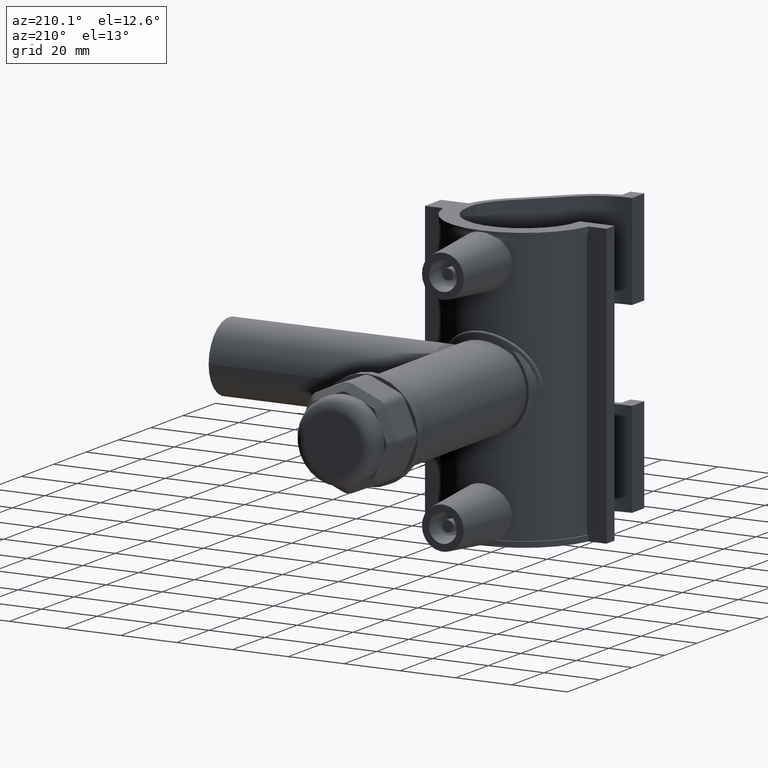
[diagram: clean part render]
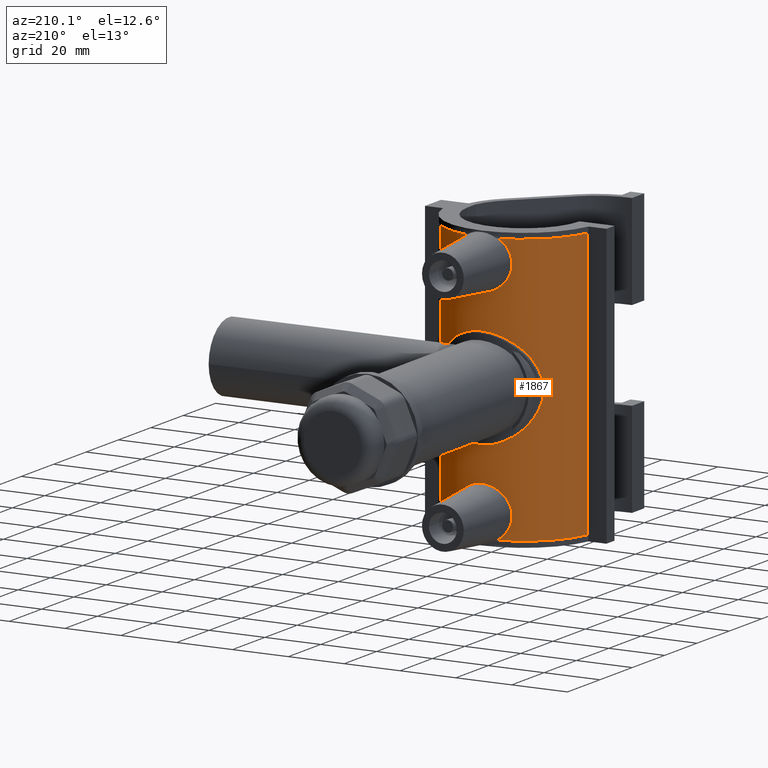
[diagram: same view with one face highlighted and labeled with its STEP entity id]
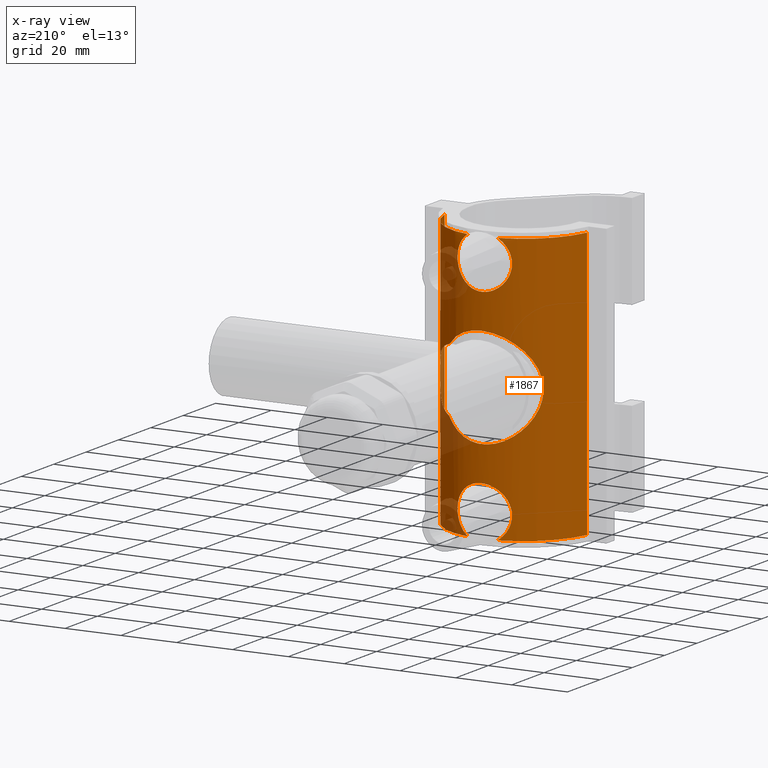
[diagram: x-ray of the same camera — body ghosted, the highlighted face saturated]
A machine part, auxiliary view. The second image highlights one B-rep face of the part: STEP entity #1867.
The next image is the same camera in x-ray: the body ghosted, the highlighted face saturated — about 8% of this face is hidden behind the body in this view.
In plain terms, the highlighted cylindrical surface (partial cylindrical patch) has radius 26 mm, axis along (0, 0, 1).
Its self-contained STEP definition (entity closure, byte-faithful):
#55=FACE_BOUND('',#369,.T.);
#69=B_SPLINE_CURVE_WITH_KNOTS('',3,(#2870,#2871,#2872,#2873,#2874,#2875,
#2876,#2877),.UNSPECIFIED.,.F.,.F.,(4,2,2,4),(2.94996046614777,3.31966211596086,
3.68936376577394,3.87630209367673),.UNSPECIFIED.);
#70=B_SPLINE_CURVE_WITH_KNOTS('',3,(#2878,#2879,#2880,#2881,#2882,#2883,
#2884,#2885,#2886,#2887,#2888,#2889,#2890,#2891,#2892,#2893,#2894,#2895,
#2896,#2897,#2898,#2899,#2900,#2901,#2902),.UNSPECIFIED.,.F.,.F.,(4,2,2,
3,2,2,2,2,2,2,2,4),(4.97357930476659,5.16051763266937,5.53021928248246,
5.89992093229554,6.26962258210863,6.63932423192171,7.00711269864557,7.37490116536943,
7.74268963209329,8.11047809881715,8.48017974863023,8.84988139844332),
 .UNSPECIFIED.);
#72=B_SPLINE_CURVE_WITH_KNOTS('',3,(#2946,#2947,#2948,#2949,#2950,#2951,
#2952,#2953,#2954,#2955,#2956,#2957,#2958,#2959,#2960,#2961,#2962,#2963,
#2964,#2965,#2966,#2967,#2968,#2969),.UNSPECIFIED.,.F.,.F.,(4,2,2,2,2,2,
2,2,2,2,2,4),(0.,0.369701649813085,0.739403299626169,1.10719176635003,1.47498023307389,
1.84276869979774,2.2105571665216,2.58025881633469,2.94996046614777,3.31966211596086,
3.68936376577394,3.87630209367673),.UNSPECIFIED.);
#73=B_SPLINE_CURVE_WITH_KNOTS('',3,(#2970,#2971,#2972,#2973,#2974,#2975,
#2976,#2977),.UNSPECIFIED.,.F.,.F.,(4,2,2,4),(4.97357930476659,5.16051763266937,
5.53021928248246,5.89992093229554),.UNSPECIFIED.);
#90=B_SPLINE_CURVE_WITH_KNOTS('',3,(#3247,#3248,#3249,#3250,#3251,#3252,
#3253,#3254,#3255,#3256,#3257,#3258,#3259,#3260,#3261,#3262,#3263,#3264,
#3265,#3266,#3267,#3268,#3269,#3270,#3271,#3272,#3273,#3274,#3275,#3276,
#3277,#3278,#3279,#3280,#3281,#3282,#3283,#3284,#3285,#3286,#3287,#3288,
#3289,#3290,#3291,#3292,#3293,#3294,#3295,#3296),.UNSPECIFIED.,.F.,.F.,
(4,2,2,2,2,2,2,2,2,2,2,2,2,2,2,2,2,2,2,2,2,2,2,2,4),(1.24480447009788,1.4282482506989,
1.78051013827437,2.13277202584984,2.48503391342532,2.83729580100079,3.18955768857626,
3.54181957615173,3.8940814637272,4.24634335130267,4.96046747665213,5.31752953932685,
5.67459160200158,6.0316536646763,6.38871572735103,7.10283985270048,7.45510174027595,
7.80736362785142,8.15962551542689,8.51188740300236,8.86414929057783,9.2164111781533,
9.56867306572878,9.92093495330425,10.1043787339053),.UNSPECIFIED.);
#92=B_SPLINE_CURVE_WITH_KNOTS('',3,(#3304,#3305,#3306,#3307,#3308,#3309,
#3310,#3311,#3312,#3313,#3314,#3315,#3316,#3317,#3318,#3319,#3320,#3321,
#3322,#3323,#3324,#3325),.UNSPECIFIED.,.F.,.F.,(4,2,2,2,2,2,2,2,2,2,4),
(1.51817487834164,1.75387686182391,2.04507912757851,2.33628139333311,2.74559691452897,
3.15491243572484,3.56422795692071,3.97354347811657,4.26474574387117,4.55594800962577,
4.79164999310803),.UNSPECIFIED.);
#113=CIRCLE('',#1992,26.);
#114=CIRCLE('',#1994,26.);
#117=CIRCLE('',#2001,26.);
#118=CIRCLE('',#2003,26.);
#189=CYLINDRICAL_SURFACE('',#2006,26.);
#242=FACE_OUTER_BOUND('',#368,.T.);
#368=EDGE_LOOP('',(#1356,#1357,#1358,#1359,#1360,#1361,#1362,#1363,#1364,
#1365));
#369=EDGE_LOOP('',(#1366,#1367));
#486=LINE('',#2911,#635);
#492=LINE('',#2983,#641);
#635=VECTOR('',#2249,96.);
#641=VECTOR('',#2273,96.);
#790=VERTEX_POINT('',#2849);
#793=VERTEX_POINT('',#2865);
#794=VERTEX_POINT('',#2869);
#797=VERTEX_POINT('',#2908);
#798=VERTEX_POINT('',#2910);
#800=VERTEX_POINT('',#2921);
#801=VERTEX_POINT('',#2925);
#804=VERTEX_POINT('',#2941);
#805=VERTEX_POINT('',#2945);
#807=VERTEX_POINT('',#2981);
#826=VERTEX_POINT('',#3239);
#827=VERTEX_POINT('',#3246);
#983=EDGE_CURVE('',#794,#793,#69,.T.);
#984=EDGE_CURVE('',#790,#794,#70,.T.);
#988=EDGE_CURVE('',#797,#798,#486,.T.);
#993=EDGE_CURVE('',#797,#790,#113,.T.);
#995=EDGE_CURVE('',#793,#800,#114,.T.);
#999=EDGE_CURVE('',#805,#804,#72,.T.);
#1000=EDGE_CURVE('',#801,#805,#73,.T.);
#1003=EDGE_CURVE('',#800,#807,#492,.T.);
#1006=EDGE_CURVE('',#807,#801,#117,.T.);
#1007=EDGE_CURVE('',#804,#798,#118,.T.);
#1028=EDGE_CURVE('',#827,#826,#90,.T.);
#1030=EDGE_CURVE('',#826,#827,#92,.T.);
#1356=ORIENTED_EDGE('',*,*,#1007,.T.);
#1357=ORIENTED_EDGE('',*,*,#988,.F.);
#1358=ORIENTED_EDGE('',*,*,#993,.T.);
#1359=ORIENTED_EDGE('',*,*,#984,.T.);
#1360=ORIENTED_EDGE('',*,*,#983,.T.);
#1361=ORIENTED_EDGE('',*,*,#995,.T.);
#1362=ORIENTED_EDGE('',*,*,#1003,.T.);
#1363=ORIENTED_EDGE('',*,*,#1006,.T.);
#1364=ORIENTED_EDGE('',*,*,#1000,.T.);
#1365=ORIENTED_EDGE('',*,*,#999,.T.);
#1366=ORIENTED_EDGE('',*,*,#1030,.T.);
#1367=ORIENTED_EDGE('',*,*,#1028,.T.);
#1867=ADVANCED_FACE('',(#242,#55),#189,.T.);
#1992=AXIS2_PLACEMENT_3D('',#2919,#2260,#2261);
#1994=AXIS2_PLACEMENT_3D('',#2923,#2265,#2266);
#2001=AXIS2_PLACEMENT_3D('',#2988,#2282,#2283);
#2003=AXIS2_PLACEMENT_3D('',#2990,#2286,#2287);
#2006=AXIS2_PLACEMENT_3D('',#3303,#2296,#2297);
#2249=DIRECTION('',(0.,0.,-1.));
#2260=DIRECTION('center_axis',(0.,0.,-1.));
#2261=DIRECTION('ref_axis',(1.,0.,0.));
#2265=DIRECTION('center_axis',(0.,0.,-1.));
#2266=DIRECTION('ref_axis',(1.,0.,0.));
#2273=DIRECTION('',(0.,0.,-1.));
#2282=DIRECTION('center_axis',(0.,0.,1.));
#2283=DIRECTION('ref_axis',(1.,0.,0.));
#2286=DIRECTION('center_axis',(0.,0.,1.));
#2287=DIRECTION('ref_axis',(1.,0.,0.));
#2296=DIRECTION('center_axis',(0.,0.,1.));
#2297=DIRECTION('ref_axis',(1.,0.,0.));
#2849=CARTESIAN_POINT('',(-5.3951674336109,25.4340749460896,48.));
#2865=CARTESIAN_POINT('',(5.3951674336109,25.4340749460896,48.));
#2869=CARTESIAN_POINT('',(9.76630249195255,24.096043983104,40.));
#2870=CARTESIAN_POINT('Ctrl Pts',(9.76630249195255,24.096043983104,40.));
#2871=CARTESIAN_POINT('Ctrl Pts',(9.76630249195255,24.096043983104,41.2323388327103));
#2872=CARTESIAN_POINT('Ctrl Pts',(9.50996216014971,24.2044189053942,42.5340450094426));
#2873=CARTESIAN_POINT('Ctrl Pts',(8.49387395753575,24.5794092044208,44.9067073127729));
#2874=CARTESIAN_POINT('Ctrl Pts',(7.73484343137409,24.8390807172828,45.9790627512517));
#2875=CARTESIAN_POINT('Ctrl Pts',(6.42972331783999,25.1965310724773,47.2485693515817));
#2876=CARTESIAN_POINT('Ctrl Pts',(5.93451184178679,25.3196672708485,47.6483411838531));
#2877=CARTESIAN_POINT('Ctrl Pts',(5.3951674336109,25.4340749460896,48.));
#2878=CARTESIAN_POINT('Ctrl Pts',(-5.3951674336109,25.4340749460896,48.));
#2879=CARTESIAN_POINT('Ctrl Pts',(-5.93451184178679,25.3196672708485,47.6483411838531));
#2880=CARTESIAN_POINT('Ctrl Pts',(-6.42972331783999,25.1965310724773,47.2485693515817));
#2881=CARTESIAN_POINT('Ctrl Pts',(-7.73484343137409,24.8390807172828,45.9790627512517));
#2882=CARTESIAN_POINT('Ctrl Pts',(-8.49387395753575,24.5794092044208,44.9067073127729));
#2883=CARTESIAN_POINT('Ctrl Pts',(-9.50996216014971,24.2044189053942,42.5340450094426));
#2884=CARTESIAN_POINT('Ctrl Pts',(-9.76630249195255,24.096043983104,41.2323388327103));
#2885=CARTESIAN_POINT('Ctrl Pts',(-9.76630249195255,24.096043983104,40.));
#2886=CARTESIAN_POINT('Ctrl Pts',(-9.76630249195255,24.096043983104,38.7676611672897));
#2887=CARTESIAN_POINT('Ctrl Pts',(-9.50996216014971,24.2044189053943,37.4659549905574));
#2888=CARTESIAN_POINT('Ctrl Pts',(-8.49387395753574,24.5794092044208,35.0932926872271));
#2889=CARTESIAN_POINT('Ctrl Pts',(-7.73484343137409,24.8390807172828,34.0209372487483));
#2890=CARTESIAN_POINT('Ctrl Pts',(-6.00569492756996,25.3126652865951,32.3389729484772));
#2891=CARTESIAN_POINT('Ctrl Pts',(-4.91758131382388,25.5592379122145,31.6109466468528));
#2892=CARTESIAN_POINT('Ctrl Pts',(-2.528128502029,25.9049380292898,30.6412987795354));
#2893=CARTESIAN_POINT('Ctrl Pts',(-1.22596155574619,26.,30.4002720753778));
#2894=CARTESIAN_POINT('Ctrl Pts',(1.22596155574619,26.,30.4002720753778));
#2895=CARTESIAN_POINT('Ctrl Pts',(2.528128502029,25.9049380292898,30.6412987795354));
#2896=CARTESIAN_POINT('Ctrl Pts',(4.91758131382388,25.5592379122145,31.6109466468528));
#2897=CARTESIAN_POINT('Ctrl Pts',(6.00569492756995,25.3126652865951,32.3389729484772));
#2898=CARTESIAN_POINT('Ctrl Pts',(7.73484343137408,24.8390807172828,34.0209372487483));
#2899=CARTESIAN_POINT('Ctrl Pts',(8.49387395753574,24.5794092044208,35.0932926872271));
#2900=CARTESIAN_POINT('Ctrl Pts',(9.50996216014971,24.2044189053942,37.4659549905574));
#2901=CARTESIAN_POINT('Ctrl Pts',(9.76630249195255,24.096043983104,38.7676611672897));
#2902=CARTESIAN_POINT('Ctrl Pts',(9.76630249195255,24.096043983104,40.));
#2908=CARTESIAN_POINT('',(-25.5147016443462,5.,48.));
#2910=CARTESIAN_POINT('',(-25.5147016443462,5.,-48.));
#2911=CARTESIAN_POINT('',(-25.5147016443462,5.,0.));
#2919=CARTESIAN_POINT('Origin',(0.,0.,48.));
#2921=CARTESIAN_POINT('',(25.5147016443462,4.99999999999999,48.));
#2923=CARTESIAN_POINT('Origin',(0.,0.,48.));
#2925=CARTESIAN_POINT('',(5.3951674336109,25.4340749460896,-48.));
#2941=CARTESIAN_POINT('',(-5.3951674336109,25.4340749460896,-48.));
#2945=CARTESIAN_POINT('',(9.76630249195255,24.096043983104,-40.));
#2946=CARTESIAN_POINT('Ctrl Pts',(9.76630249195255,24.096043983104,-40.));
#2947=CARTESIAN_POINT('Ctrl Pts',(9.76630249195255,24.096043983104,-38.7676611672897));
#2948=CARTESIAN_POINT('Ctrl Pts',(9.5099621601497,24.2044189053943,-37.4659549905574));
#2949=CARTESIAN_POINT('Ctrl Pts',(8.49387395753574,24.5794092044208,-35.0932926872271));
#2950=CARTESIAN_POINT('Ctrl Pts',(7.73484343137408,24.8390807172828,-34.0209372487483));
#2951=CARTESIAN_POINT('Ctrl Pts',(6.00569492756995,25.3126652865951,-32.3389729484772));
#2952=CARTESIAN_POINT('Ctrl Pts',(4.91758131382388,25.5592379122145,-31.6109466468528));
#2953=CARTESIAN_POINT('Ctrl Pts',(2.528128502029,25.9049380292898,-30.6412987795354));
#2954=CARTESIAN_POINT('Ctrl Pts',(1.22596155574619,26.,-30.4002720753778));
#2955=CARTESIAN_POINT('Ctrl Pts',(-1.22596155574619,26.,-30.4002720753778));
#2956=CARTESIAN_POINT('Ctrl Pts',(-2.528128502029,25.9049380292898,-30.6412987795354));
#2957=CARTESIAN_POINT('Ctrl Pts',(-4.91758131382388,25.5592379122145,-31.6109466468528));
#2958=CARTESIAN_POINT('Ctrl Pts',(-6.00569492756996,25.3126652865951,-32.3389729484772));
#2959=CARTESIAN_POINT('Ctrl Pts',(-7.73484343137409,24.8390807172828,-34.0209372487483));
#2960=CARTESIAN_POINT('Ctrl Pts',(-8.49387395753574,24.5794092044208,-35.0932926872271));
#2961=CARTESIAN_POINT('Ctrl Pts',(-9.50996216014971,24.2044189053943,-37.4659549905574));
#2962=CARTESIAN_POINT('Ctrl Pts',(-9.76630249195255,24.096043983104,-38.7676611672897));
#2963=CARTESIAN_POINT('Ctrl Pts',(-9.76630249195255,24.096043983104,-41.2323388327103));
#2964=CARTESIAN_POINT('Ctrl Pts',(-9.50996216014972,24.2044189053942,-42.5340450094426));
#2965=CARTESIAN_POINT('Ctrl Pts',(-8.49387395753575,24.5794092044208,-44.9067073127729));
#2966=CARTESIAN_POINT('Ctrl Pts',(-7.73484343137408,24.8390807172828,-45.9790627512517));
#2967=CARTESIAN_POINT('Ctrl Pts',(-6.42972331783999,25.1965310724773,-47.2485693515817));
#2968=CARTESIAN_POINT('Ctrl Pts',(-5.93451184178679,25.3196672708485,-47.6483411838531));
#2969=CARTESIAN_POINT('Ctrl Pts',(-5.39516743361091,25.4340749460896,-48.));
#2970=CARTESIAN_POINT('Ctrl Pts',(5.3951674336109,25.4340749460896,-48.));
#2971=CARTESIAN_POINT('Ctrl Pts',(5.93451184178679,25.3196672708485,-47.6483411838531));
#2972=CARTESIAN_POINT('Ctrl Pts',(6.42972331783999,25.1965310724773,-47.2485693515817));
#2973=CARTESIAN_POINT('Ctrl Pts',(7.73484343137409,24.8390807172828,-45.9790627512517));
#2974=CARTESIAN_POINT('Ctrl Pts',(8.49387395753574,24.5794092044208,-44.9067073127729));
#2975=CARTESIAN_POINT('Ctrl Pts',(9.5099621601497,24.2044189053942,-42.5340450094426));
#2976=CARTESIAN_POINT('Ctrl Pts',(9.76630249195255,24.096043983104,-41.2323388327103));
#2977=CARTESIAN_POINT('Ctrl Pts',(9.76630249195255,24.096043983104,-40.));
#2981=CARTESIAN_POINT('',(25.5147016443462,4.99999999999999,-48.));
#2983=CARTESIAN_POINT('',(25.5147016443462,4.99999999999999,0.));
#2988=CARTESIAN_POINT('Origin',(0.,0.,-48.));
#2990=CARTESIAN_POINT('Origin',(0.,0.,-48.));
#3239=CARTESIAN_POINT('',(13.8914132865373,21.9779124780999,-11.4467740831916));
#3246=CARTESIAN_POINT('',(13.8914132865373,21.9779124780999,11.4467740831916));
#3247=CARTESIAN_POINT('Ctrl Pts',(13.8914132865373,21.9779124782727,11.4467740827979));
#3248=CARTESIAN_POINT('Ctrl Pts',(13.5194038834503,22.2130456543589,11.8982319631912));
#3249=CARTESIAN_POINT('Ctrl Pts',(13.129795975017,22.4459542436485,12.3260481476988));
#3250=CARTESIAN_POINT('Ctrl Pts',(11.9562149861488,23.1048079803976,13.4996291365669));
#3251=CARTESIAN_POINT('Ctrl Pts',(11.0808501527128,23.5436566291891,14.2325620782425));
#3252=CARTESIAN_POINT('Ctrl Pts',(9.15831442918429,24.3559907288748,15.5395090124102));
#3253=CARTESIAN_POINT('Ctrl Pts',(8.11101055590943,24.729045980526,16.11359473591));
#3254=CARTESIAN_POINT('Ctrl Pts',(5.90306288556097,25.3469537157066,17.046709025924));
#3255=CARTESIAN_POINT('Ctrl Pts',(4.74002611958919,25.5921162321482,17.4065092815395));
#3256=CARTESIAN_POINT('Ctrl Pts',(2.37563064979923,25.9187314481245,17.8832545139332));
#3257=CARTESIAN_POINT('Ctrl Pts',(1.17420629191824,26.,18.));
#3258=CARTESIAN_POINT('Ctrl Pts',(-1.17420629191824,26.,18.));
#3259=CARTESIAN_POINT('Ctrl Pts',(-2.37563064979923,25.9187314481245,17.8832545139332));
#3260=CARTESIAN_POINT('Ctrl Pts',(-4.74002611958918,25.5921162321482,17.4065092815395));
#3261=CARTESIAN_POINT('Ctrl Pts',(-5.90306288556096,25.3469537157066,17.046709025924));
#3262=CARTESIAN_POINT('Ctrl Pts',(-8.11101055590942,24.729045980526,16.11359473591));
#3263=CARTESIAN_POINT('Ctrl Pts',(-9.15831442918429,24.3559907288748,15.5395090124102));
#3264=CARTESIAN_POINT('Ctrl Pts',(-11.0808501527128,23.5436566291891,14.2325620782425));
#3265=CARTESIAN_POINT('Ctrl Pts',(-11.9562149861488,23.1048079803976,13.4996291365669));
#3266=CARTESIAN_POINT('Ctrl Pts',(-14.2923678885879,21.7932810521422,11.1634762341278));
#3267=CARTESIAN_POINT('Ctrl Pts',(-15.6545213016262,20.7938080945865,9.19797308121408));
#3268=CARTESIAN_POINT('Ctrl Pts',(-17.0441517717604,19.6432831043967,5.90876507937211));
#3269=CARTESIAN_POINT('Ctrl Pts',(-17.4023690971889,19.3200268109012,4.7545801748869));
#3270=CARTESIAN_POINT('Ctrl Pts',(-17.8804412616865,18.8784455823717,2.39547529200529));
#3271=CARTESIAN_POINT('Ctrl Pts',(-18.,18.7616630392937,1.19020687558242));
#3272=CARTESIAN_POINT('Ctrl Pts',(-18.,18.7616630392937,-1.19020687558242));
#3273=CARTESIAN_POINT('Ctrl Pts',(-17.8804412616865,18.8784455823717,-2.39547529200528));
#3274=CARTESIAN_POINT('Ctrl Pts',(-17.4023690971889,19.3200268109012,-4.7545801748869));
#3275=CARTESIAN_POINT('Ctrl Pts',(-17.0441517717604,19.6432831043967,-5.90876507937211));
#3276=CARTESIAN_POINT('Ctrl Pts',(-15.6545213016262,20.7938080945865,-9.19797308121407));
#3277=CARTESIAN_POINT('Ctrl Pts',(-14.2923678885879,21.7932810521422,-11.1634762341278));
#3278=CARTESIAN_POINT('Ctrl Pts',(-11.9562149861488,23.1048079803976,-13.4996291365669));
#3279=CARTESIAN_POINT('Ctrl Pts',(-11.0808501527128,23.5436566291891,-14.2325620782425));
#3280=CARTESIAN_POINT('Ctrl Pts',(-9.15831442918428,24.3559907288748,-15.5395090124102));
#3281=CARTESIAN_POINT('Ctrl Pts',(-8.11101055590943,24.729045980526,-16.11359473591));
#3282=CARTESIAN_POINT('Ctrl Pts',(-5.90306288556097,25.3469537157066,-17.046709025924));
#3283=CARTESIAN_POINT('Ctrl Pts',(-4.74002611958919,25.5921162321482,-17.4065092815395));
#3284=CARTESIAN_POINT('Ctrl Pts',(-2.37563064979923,25.9187314481245,-17.8832545139332));
#3285=CARTESIAN_POINT('Ctrl Pts',(-1.17420629191824,26.,-18.));
#3286=CARTESIAN_POINT('Ctrl Pts',(1.17420629191823,26.,-18.));
#3287=CARTESIAN_POINT('Ctrl Pts',(2.37563064979922,25.9187314481245,-17.8832545139332));
#3288=CARTESIAN_POINT('Ctrl Pts',(4.74002611958918,25.5921162321482,-17.4065092815395));
#3289=CARTESIAN_POINT('Ctrl Pts',(5.90306288556096,25.3469537157066,-17.046709025924));
#3290=CARTESIAN_POINT('Ctrl Pts',(8.11101055590941,24.729045980526,-16.11359473591));
#3291=CARTESIAN_POINT('Ctrl Pts',(9.15831442918429,24.3559907288748,-15.5395090124102));
#3292=CARTESIAN_POINT('Ctrl Pts',(11.0808501527128,23.5436566291891,-14.2325620782425));
#3293=CARTESIAN_POINT('Ctrl Pts',(11.9562149861488,23.1048079803976,-13.4996291365669));
#3294=CARTESIAN_POINT('Ctrl Pts',(13.129795975017,22.4459542436485,-12.3260481476988));
#3295=CARTESIAN_POINT('Ctrl Pts',(13.5194038834503,22.2130456543589,-11.8982319631912));
#3296=CARTESIAN_POINT('Ctrl Pts',(13.8914132865373,21.9779124782727,-11.4467740827979));
#3303=CARTESIAN_POINT('Origin',(0.,0.,0.));
#3304=CARTESIAN_POINT('Ctrl Pts',(13.8914132867137,21.9779124781612,-11.446774083688));
#3305=CARTESIAN_POINT('Ctrl Pts',(14.5535989341959,21.559369793052,-11.2631452306263));
#3306=CARTESIAN_POINT('Ctrl Pts',(15.1815448605702,21.1203341186584,-11.0431213913194));
#3307=CARTESIAN_POINT('Ctrl Pts',(16.4970215199923,20.1167706042439,-10.4539372410978));
#3308=CARTESIAN_POINT('Ctrl Pts',(17.2380703596235,19.4852018888241,-10.0227621987662));
#3309=CARTESIAN_POINT('Ctrl Pts',(18.5551441364541,18.235426367315,-8.95043088055571));
#3310=CARTESIAN_POINT('Ctrl Pts',(19.1315915173185,17.6199816593996,-8.30657782328595));
#3311=CARTESIAN_POINT('Ctrl Pts',(20.2293208507191,16.3623343267868,-6.67384533313081));
#3312=CARTESIAN_POINT('Ctrl Pts',(20.7533536132865,15.6725488881349,-5.46979738768323));
#3313=CARTESIAN_POINT('Ctrl Pts',(21.4257526433253,14.7399977891251,-2.8146486256701));
#3314=CARTESIAN_POINT('Ctrl Pts',(21.5812418549072,14.5,-1.36438507065289));
#3315=CARTESIAN_POINT('Ctrl Pts',(21.5812418549072,14.5,1.36438507065289));
#3316=CARTESIAN_POINT('Ctrl Pts',(21.4257526433253,14.7399977891251,2.8146486256701));
#3317=CARTESIAN_POINT('Ctrl Pts',(20.7533536132865,15.6725488881349,5.46979738768323));
#3318=CARTESIAN_POINT('Ctrl Pts',(20.2293208507191,16.3623343267868,6.67384533313081));
#3319=CARTESIAN_POINT('Ctrl Pts',(19.1315915173185,17.6199816593996,8.30657782328595));
#3320=CARTESIAN_POINT('Ctrl Pts',(18.5551441364541,18.235426367315,8.95043088055572));
#3321=CARTESIAN_POINT('Ctrl Pts',(17.2380703596235,19.4852018888241,10.0227621987662));
#3322=CARTESIAN_POINT('Ctrl Pts',(16.4970215199923,20.1167706042439,10.4539372410978));
#3323=CARTESIAN_POINT('Ctrl Pts',(15.1815448605702,21.1203341186584,11.0431213913194));
#3324=CARTESIAN_POINT('Ctrl Pts',(14.5535989341959,21.559369793052,11.2631452306263));
#3325=CARTESIAN_POINT('Ctrl Pts',(13.8914132867137,21.9779124781612,11.446774083688));